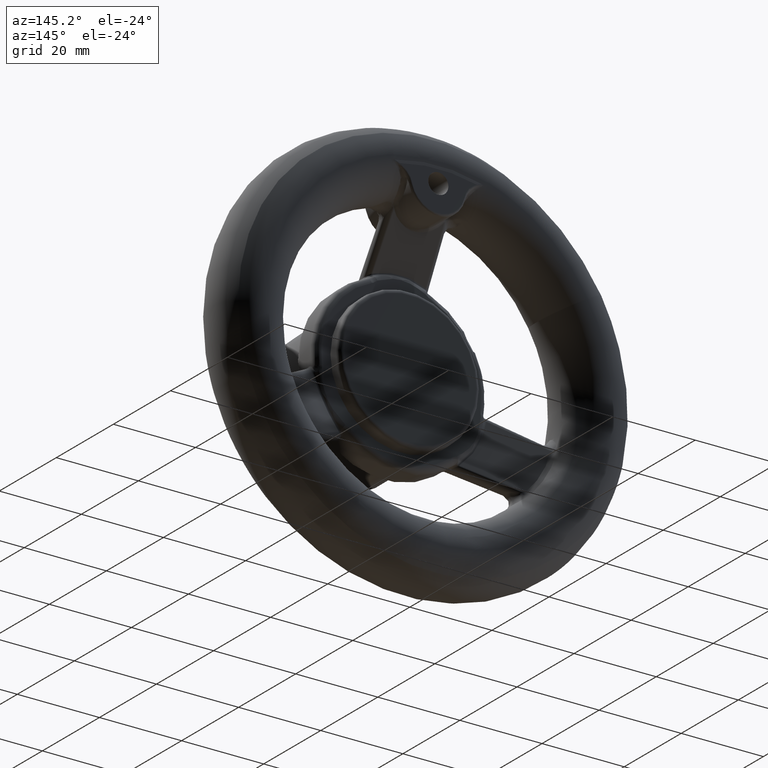
[diagram: clean part render]
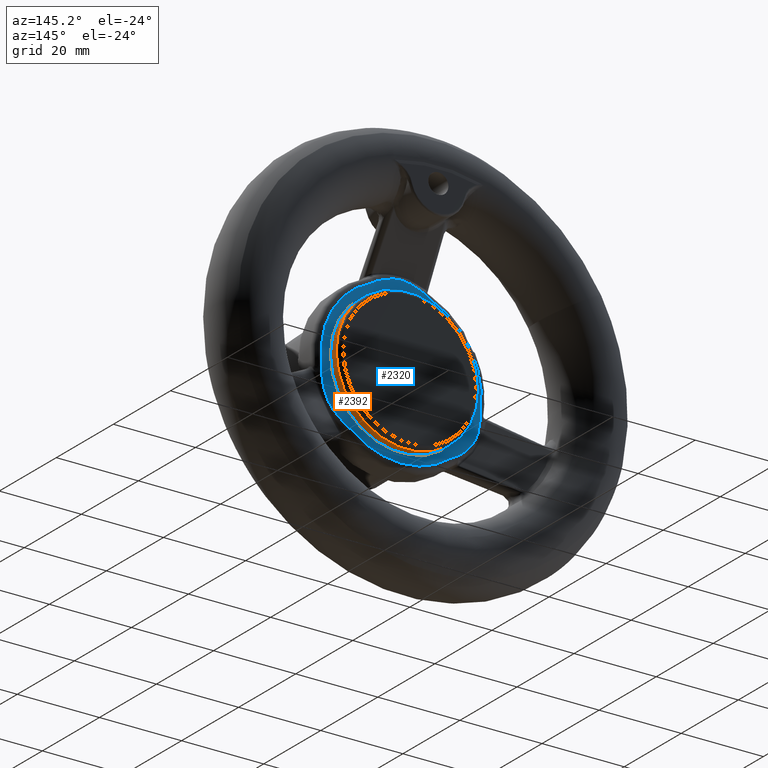
[diagram: same view with the hole feature highlighted: cylindrical wall and planar end face, labeled with their STEP entity ids]
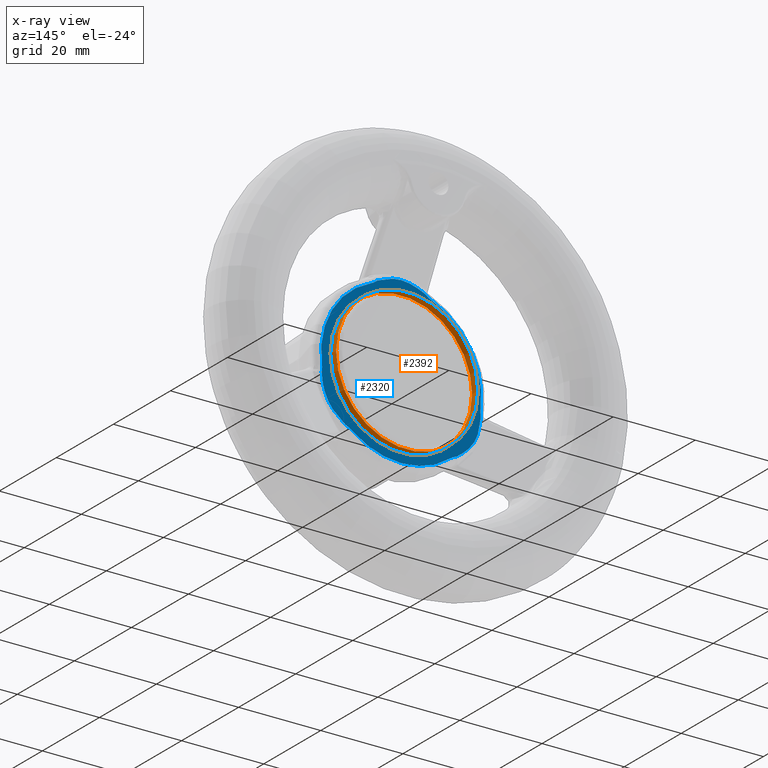
[diagram: x-ray of the same camera — body ghosted, the hole faces saturated]
A machine part, auxiliary view. The highlighted faces form one hole feature of diameter 34.5 mm: the cylindrical wall (entity #2392, orange) and its adjacent planar end face (entity #2320, blue) — they share a circular edge in the B-rep.
The next image is the same camera in x-ray (body ghosted, the hole faces saturated) — the bore reads through the body.
Wall:
#428=FACE_BOUND('',#791,.T.);
#456=CYLINDRICAL_SURFACE('',#2608,17.25);
#615=FACE_OUTER_BOUND('',#790,.T.);
#790=EDGE_LOOP('',(#2228));
#791=EDGE_LOOP('',(#2229));
#886=CIRCLE('',#2537,17.25);
#927=CIRCLE('',#2606,17.25);
#1106=VERTEX_POINT('',#5705);
#1140=VERTEX_POINT('',#7449);
#1400=EDGE_CURVE('',#1106,#1106,#886,.T.);
#1503=EDGE_CURVE('',#1140,#1140,#927,.T.);
#2228=ORIENTED_EDGE('',*,*,#1400,.T.);
#2229=ORIENTED_EDGE('',*,*,#1503,.F.);
#2392=ADVANCED_FACE('',(#615,#428),#456,.T.);
#2537=AXIS2_PLACEMENT_3D('',#5706,#2912,#2913);
#2606=AXIS2_PLACEMENT_3D('',#7450,#3072,#3073);
#2608=AXIS2_PLACEMENT_3D('',#7453,#3076,#3077);
#2912=DIRECTION('center_axis',(0.,1.,0.));
#2913=DIRECTION('ref_axis',(1.,0.,0.));
#3072=DIRECTION('center_axis',(0.,1.,0.));
#3073=DIRECTION('ref_axis',(1.,0.,0.));
#3076=DIRECTION('center_axis',(0.,1.,0.));
#3077=DIRECTION('ref_axis',(-1.,0.,0.));
#5705=CARTESIAN_POINT('',(-17.25,-3.,0.));
#5706=CARTESIAN_POINT('Origin',(0.,-3.,0.));
#7449=CARTESIAN_POINT('',(-17.25,-1.,2.11251572852918E-15));
#7450=CARTESIAN_POINT('Origin',(0.,-1.,0.));
#7453=CARTESIAN_POINT('Origin',(0.,-1.5,0.));
End face:
#226=B_SPLINE_CURVE_WITH_KNOTS('',3,(#5036,#5037,#5038,#5039,#5040,#5041,
#5042),.UNSPECIFIED.,.F.,.F.,(4,1,1,1,4),(-1.21068623022158,-0.864775878729699,
-0.518865527237819,-0.17295517574594,0.),.UNSPECIFIED.);
#228=B_SPLINE_CURVE_WITH_KNOTS('',3,(#5097,#5098,#5099,#5100,#5101,#5102,
#5103,#5104,#5105),.UNSPECIFIED.,.F.,.F.,(4,1,1,1,1,1,4),(-0.166450829292712,
-0.160506156817972,-0.154561484343232,-0.142672139393753,-0.118893449494794,
-0.0713360696968764,0.),.UNSPECIFIED.);
#230=B_SPLINE_CURVE_WITH_KNOTS('',3,(#5171,#5172,#5173,#5174,#5175,#5176,
#5177,#5178,#5179,#5180),.UNSPECIFIED.,.F.,.F.,(4,1,1,1,1,1,1,4),(-0.166430644967014,
-0.118879032119957,-0.0713274192728992,-0.0475516128493705,-0.0237758064258418,
-0.0118879032140775,-0.00594395160819534,-2.31317631824325E-12),
 .UNSPECIFIED.);
#232=B_SPLINE_CURVE_WITH_KNOTS('',3,(#5223,#5224,#5225,#5226,#5227,#5228,
#5229),.UNSPECIFIED.,.F.,.F.,(4,1,1,1,4),(-1.21068623022158,-0.8647758787297,
-0.51886552723782,-0.17295517574594,0.),.UNSPECIFIED.);
#234=B_SPLINE_CURVE_WITH_KNOTS('',3,(#5284,#5285,#5286,#5287,#5288,#5289,
#5290,#5291,#5292),.UNSPECIFIED.,.F.,.F.,(4,1,1,1,1,1,4),(-0.166450838630107,
-0.160506165821889,-0.154561493013671,-0.142672147397235,-0.118893456164362,
-0.0713360736986174,0.),.UNSPECIFIED.);
#236=B_SPLINE_CURVE_WITH_KNOTS('',3,(#5353,#5354,#5355,#5356,#5357,#5358,
#5359,#5360,#5361),.UNSPECIFIED.,.F.,.F.,(4,1,1,1,1,1,4),(-0.166430638817795,
-0.0951032221825879,-0.0475516110924501,-0.0237758055473811,-0.0118879027748467,
-0.00594395138857945,-2.31222533164827E-12),.UNSPECIFIED.);
#238=B_SPLINE_CURVE_WITH_KNOTS('',3,(#5403,#5404,#5405,#5406,#5407,#5408,
#5409),.UNSPECIFIED.,.F.,.F.,(4,1,1,1,4),(-1.21068623022158,-0.8647758787297,
-0.51886552723782,-0.17295517574594,0.),.UNSPECIFIED.);
#240=B_SPLINE_CURVE_WITH_KNOTS('',3,(#5464,#5465,#5466,#5467,#5468,#5469,
#5470,#5471,#5472),.UNSPECIFIED.,.F.,.F.,(4,1,1,1,1,1,4),(-0.166450838689197,
-0.160506165878869,-0.15456149306854,-0.142672147447883,-0.118893456206569,
-0.0713360737239416,0.),.UNSPECIFIED.);
#242=B_SPLINE_CURVE_WITH_KNOTS('',3,(#5532,#5533,#5534,#5535,#5536,#5537,
#5538,#5539,#5540,#5541),.UNSPECIFIED.,.F.,.F.,(4,1,1,1,1,1,1,4),(-0.166430639349759,
-0.118879028107631,-0.0713274168655038,-0.0475516112444401,-0.0237758056233763,
-0.0118879028128444,-0.00594395140757847,-2.31252450995299E-12),
 .UNSPECIFIED.);
#384=PLANE('',#2536);
#426=FACE_BOUND('',#717,.T.);
#543=FACE_OUTER_BOUND('',#716,.T.);
#716=EDGE_LOOP('',(#1934,#1935,#1936,#1937,#1938,#1939,#1940,#1941,#1942,
#1943,#1944,#1945));
#717=EDGE_LOOP('',(#1946));
#866=CIRCLE('',#2513,19.5);
#871=CIRCLE('',#2519,19.5);
#876=CIRCLE('',#2525,19.5);
#886=CIRCLE('',#2537,17.25);
#1085=VERTEX_POINT('',#4999);
#1086=VERTEX_POINT('',#5001);
#1088=VERTEX_POINT('',#5033);
#1089=VERTEX_POINT('',#5035);
#1091=VERTEX_POINT('',#5116);
#1092=VERTEX_POINT('',#5118);
#1094=VERTEX_POINT('',#5220);
#1095=VERTEX_POINT('',#5222);
#1097=VERTEX_POINT('',#5303);
#1098=VERTEX_POINT('',#5305);
#1100=VERTEX_POINT('',#5400);
#1101=VERTEX_POINT('',#5402);
#1106=VERTEX_POINT('',#5705);
#1360=EDGE_CURVE('',#1086,#1085,#866,.T.);
#1362=EDGE_CURVE('',#1088,#1089,#226,.T.);
#1365=EDGE_CURVE('',#1089,#1086,#228,.T.);
#1369=EDGE_CURVE('',#1092,#1091,#871,.T.);
#1370=EDGE_CURVE('',#1091,#1088,#230,.T.);
#1373=EDGE_CURVE('',#1094,#1095,#232,.T.);
#1376=EDGE_CURVE('',#1095,#1092,#234,.T.);
#1380=EDGE_CURVE('',#1098,#1097,#876,.T.);
#1381=EDGE_CURVE('',#1097,#1094,#236,.T.);
#1384=EDGE_CURVE('',#1100,#1101,#238,.T.);
#1387=EDGE_CURVE('',#1101,#1098,#240,.T.);
#1389=EDGE_CURVE('',#1085,#1100,#242,.T.);
#1400=EDGE_CURVE('',#1106,#1106,#886,.T.);
#1934=ORIENTED_EDGE('',*,*,#1384,.F.);
#1935=ORIENTED_EDGE('',*,*,#1389,.F.);
#1936=ORIENTED_EDGE('',*,*,#1360,.F.);
#1937=ORIENTED_EDGE('',*,*,#1365,.F.);
#1938=ORIENTED_EDGE('',*,*,#1362,.F.);
#1939=ORIENTED_EDGE('',*,*,#1370,.F.);
#1940=ORIENTED_EDGE('',*,*,#1369,.F.);
#1941=ORIENTED_EDGE('',*,*,#1376,.F.);
#1942=ORIENTED_EDGE('',*,*,#1373,.F.);
#1943=ORIENTED_EDGE('',*,*,#1381,.F.);
#1944=ORIENTED_EDGE('',*,*,#1380,.F.);
#1945=ORIENTED_EDGE('',*,*,#1387,.F.);
#1946=ORIENTED_EDGE('',*,*,#1400,.F.);
#2320=ADVANCED_FACE('',(#543,#426),#384,.T.);
#2513=AXIS2_PLACEMENT_3D('',#5003,#2864,#2865);
#2519=AXIS2_PLACEMENT_3D('',#5120,#2876,#2877);
#2525=AXIS2_PLACEMENT_3D('',#5307,#2888,#2889);
#2536=AXIS2_PLACEMENT_3D('',#5704,#2910,#2911);
#2537=AXIS2_PLACEMENT_3D('',#5706,#2912,#2913);
#2864=DIRECTION('center_axis',(0.,-1.,0.));
#2865=DIRECTION('ref_axis',(-0.866025403784439,0.,0.5));
#2876=DIRECTION('center_axis',(0.,-1.,0.));
#2877=DIRECTION('ref_axis',(0.866025403784439,0.,0.5));
#2888=DIRECTION('center_axis',(0.,-1.,0.));
#2889=DIRECTION('ref_axis',(9.49410759657493E-16,0.,-1.));
#2910=DIRECTION('center_axis',(0.,1.,0.));
#2911=DIRECTION('ref_axis',(0.,0.,1.));
#2912=DIRECTION('center_axis',(0.,1.,0.));
#2913=DIRECTION('ref_axis',(1.,0.,0.));
#4999=CARTESIAN_POINT('',(-19.2919229690125,-3.,-2.84107517635269));
#5001=CARTESIAN_POINT('',(-7.1855182079651,-3.,18.1278329670979));
#5003=CARTESIAN_POINT('Origin',(0.,-3.,0.));
#5033=CARTESIAN_POINT('',(5.79855877154797,-3.,19.0350406925964));
#5035=CARTESIAN_POINT('',(-5.79855877154796,-3.,19.0350406925964));
#5036=CARTESIAN_POINT('Ctrl Pts',(5.79855877154797,-3.,19.0350406925964));
#5037=CARTESIAN_POINT('Ctrl Pts',(4.75521291003093,-3.,19.5258746593443));
#5038=CARTESIAN_POINT('Ctrl Pts',(2.61188479513004,-3.,20.4088938247925));
#5039=CARTESIAN_POINT('Ctrl Pts',(-0.883130966014185,-3.,20.7834819354329));
#5040=CARTESIAN_POINT('Ctrl Pts',(-3.69607628895681,-3.,19.9554939012055));
#5041=CARTESIAN_POINT('Ctrl Pts',(-5.27688584078947,-3.,19.2804576759704));
#5042=CARTESIAN_POINT('Ctrl Pts',(-5.79855877154796,-3.,19.0350406925964));
#5097=CARTESIAN_POINT('Ctrl Pts',(-5.79855877152725,-3.,19.0350406926062));
#5098=CARTESIAN_POINT('Ctrl Pts',(-5.81648928270634,-3.,19.0266054227173));
#5099=CARTESIAN_POINT('Ctrl Pts',(-5.85117710767072,-3.,19.0074650219252));
#5100=CARTESIAN_POINT('Ctrl Pts',(-5.91772963811977,-3.,18.9643155732648));
#5101=CARTESIAN_POINT('Ctrl Pts',(-6.02883801286385,-3.,18.8817334385427));
#5102=CARTESIAN_POINT('Ctrl Pts',(-6.24306852486553,-3.,18.7057325614595));
#5103=CARTESIAN_POINT('Ctrl Pts',(-6.61695307015204,-3.,18.4112178638328));
#5104=CARTESIAN_POINT('Ctrl Pts',(-6.9644637880238,-3.,18.2154546128823));
#5105=CARTESIAN_POINT('Ctrl Pts',(-7.18551820785865,-3.,18.1278329671401));
#5116=CARTESIAN_POINT('',(7.18551820778743,-3.,18.1278329671683));
#5118=CARTESIAN_POINT('',(19.2919229690404,-3.,-2.84107517616332));
#5120=CARTESIAN_POINT('Origin',(0.,-3.,0.));
#5171=CARTESIAN_POINT('Ctrl Pts',(7.18551820775305,-3.,18.127832967182));
#5172=CARTESIAN_POINT('Ctrl Pts',(7.03816646501468,-3.,18.1862403141735));
#5173=CARTESIAN_POINT('Ctrl Pts',(6.75410237277734,-3.,18.3293448083069));
#5174=CARTESIAN_POINT('Ctrl Pts',(6.42936890726248,-3.,18.557753110045));
#5175=CARTESIAN_POINT('Ctrl Pts',(6.18224765117844,-3.,18.7559675213388));
#5176=CARTESIAN_POINT('Ctrl Pts',(6.02874068905272,-3.,18.8816635392183));
#5177=CARTESIAN_POINT('Ctrl Pts',(5.91772742208609,-3.,18.9643289624217));
#5178=CARTESIAN_POINT('Ctrl Pts',(5.85118101928582,-3.,19.0074543635268));
#5179=CARTESIAN_POINT('Ctrl Pts',(5.81648710839865,-3.,19.0266064456034));
#5180=CARTESIAN_POINT('Ctrl Pts',(5.79855877152725,-3.,19.0350406926062));
#5220=CARTESIAN_POINT('',(13.5855494160851,-3.,-14.5392195477958));
#5222=CARTESIAN_POINT('',(19.384108187633,-3.,-4.49582114480058));
#5223=CARTESIAN_POINT('Ctrl Pts',(13.5855494160851,-3.,-14.5392195477958));
#5224=CARTESIAN_POINT('Ctrl Pts',(14.5322970310876,-3.,-13.8810725101627));
#5225=CARTESIAN_POINT('Ctrl Pts',(16.3686954610996,-3.,-12.4664198004583));
#5226=CARTESIAN_POINT('Ctrl Pts',(18.440592557202,-3.,-9.62692899334332));
#5227=CARTESIAN_POINT('Ctrl Pts',(19.1300084639114,-3.,-6.77685588908525));
#5228=CARTESIAN_POINT('Ctrl Pts',(19.3358090643758,-3.,-5.0703116469911));
#5229=CARTESIAN_POINT('Ctrl Pts',(19.384108187633,-3.,-4.49582114480058));
#5284=CARTESIAN_POINT('Ctrl Pts',(19.3841081876311,-3.,-4.49582114482339));
#5285=CARTESIAN_POINT('Ctrl Pts',(19.3857682853022,-3.,-4.4760752305873));
#5286=CARTESIAN_POINT('Ctrl Pts',(19.3865361194498,-3.,-4.43646449316586));
#5287=CARTESIAN_POINT('Ctrl Pts',(19.3824438593252,-3.,-4.35725357409024));
#5288=CARTESIAN_POINT('Ctrl Pts',(19.3664797788676,-3.,-4.21973981432745));
#5289=CARTESIAN_POINT('Ctrl Pts',(19.3211737806788,-3.,-3.946210444737));
#5290=CARTESIAN_POINT('Ctrl Pts',(19.2530586192715,-3.,-3.4751596035044));
#5291=CARTESIAN_POINT('Ctrl Pts',(19.2572783283046,-3.,-3.07632475551333));
#5292=CARTESIAN_POINT('Ctrl Pts',(19.2919229690278,-3.,-2.84107517624911));
#5303=CARTESIAN_POINT('',(12.1064047612897,-3.,-15.2867577908405));
#5305=CARTESIAN_POINT('',(-12.1064047610713,-3.,-15.2867577910135));
#5307=CARTESIAN_POINT('Origin',(0.,-3.,0.));
#5353=CARTESIAN_POINT('Ctrl Pts',(12.1064047612965,-3.,-15.2867577908351));
#5354=CARTESIAN_POINT('Ctrl Pts',(12.2927919308596,-3.,-15.1391477777805));
#5355=CARTESIAN_POINT('Ctrl Pts',(12.6361599205773,-3.,-14.9360459083797));
#5356=CARTESIAN_POINT('Ctrl Pts',(13.0777908425076,-3.,-14.7596396433936));
#5357=CARTESIAN_POINT('Ctrl Pts',(13.3376311918127,-3.,-14.661998429043));
#5358=CARTESIAN_POINT('Ctrl Pts',(13.4647276846695,-3.,-14.6070555075657));
#5359=CARTESIAN_POINT('Ctrl Pts',(13.5353479356289,-3.,-14.5710060538817));
#5360=CARTESIAN_POINT('Ctrl Pts',(13.5692809761031,-3.,-14.5505288190418));
#5361=CARTESIAN_POINT('Ctrl Pts',(13.5855494161039,-3.,-14.5392195477828));
#5400=CARTESIAN_POINT('',(-19.384108187633,-3.,-4.49582114480059));
#5402=CARTESIAN_POINT('',(-13.5855494160851,-3.,-14.5392195477959));
#5403=CARTESIAN_POINT('Ctrl Pts',(-19.384108187633,-3.,-4.49582114480059));
#5404=CARTESIAN_POINT('Ctrl Pts',(-19.2875099411185,-3.,-5.64480214918174));
#5405=CARTESIAN_POINT('Ctrl Pts',(-18.980583971988,-3.,-7.94249619589419));
#5406=CARTESIAN_POINT('Ctrl Pts',(-17.5574613472652,-3.,-11.1565571187035));
#5407=CARTESIAN_POINT('Ctrl Pts',(-15.4339335896897,-3.,-13.178645359816));
#5408=CARTESIAN_POINT('Ctrl Pts',(-14.0589232235863,-3.,-14.2101460289793));
#5409=CARTESIAN_POINT('Ctrl Pts',(-13.5855494160851,-3.,-14.5392195477959));
#5464=CARTESIAN_POINT('Ctrl Pts',(-13.5855494161039,-3.,-14.5392195477828));
#5465=CARTESIAN_POINT('Ctrl Pts',(-13.5692790015842,-3.,-14.5505301916608));
#5466=CARTESIAN_POINT('Ctrl Pts',(-13.5353590137885,-3.,-14.5710005257492));
#5467=CARTESIAN_POINT('Ctrl Pts',(-13.4647142152654,-3.,-14.6070619857093));
#5468=CARTESIAN_POINT('Ctrl Pts',(-13.3376417690687,-3.,-14.6619935750568));
#5469=CARTESIAN_POINT('Ctrl Pts',(-13.0781054154821,-3.,-14.7595221158377));
#5470=CARTESIAN_POINT('Ctrl Pts',(-12.6361058070997,-3.,-14.9360581493964));
#5471=CARTESIAN_POINT('Ctrl Pts',(-12.2928145527409,-3.,-15.1391298622785));
#5472=CARTESIAN_POINT('Ctrl Pts',(-12.1064047611667,-3.,-15.2867577909379));
#5532=CARTESIAN_POINT('Ctrl Pts',(-19.2919229690112,-3.,-2.84107517636167));
#5533=CARTESIAN_POINT('Ctrl Pts',(-19.2688293446862,-3.,-2.99788919706846));
#5534=CARTESIAN_POINT('Ctrl Pts',(-19.250729254015,-3.,-3.3154481562927));
#5535=CARTESIAN_POINT('Ctrl Pts',(-19.2861699512818,-3.,-3.71087984933375));
#5536=CARTESIAN_POINT('Ctrl Pts',(-19.3342680623744,-3.,-4.02400020878201));
#5537=CARTESIAN_POINT('Ctrl Pts',(-19.3663705531378,-3.,-4.21978912230443));
#5538=CARTESIAN_POINT('Ctrl Pts',(-19.3824543427121,-3.,-4.35726215356039));
#5539=CARTESIAN_POINT('Ctrl Pts',(-19.3865288425783,-3.,-4.43645574918385));
#5540=CARTESIAN_POINT('Ctrl Pts',(-19.3857680838446,-3.,-4.47607762681016));
#5541=CARTESIAN_POINT('Ctrl Pts',(-19.3841081876311,-3.,-4.4958211448234));
#5704=CARTESIAN_POINT('Origin',(0.,-3.,0.));
#5705=CARTESIAN_POINT('',(-17.25,-3.,0.));
#5706=CARTESIAN_POINT('Origin',(0.,-3.,0.));